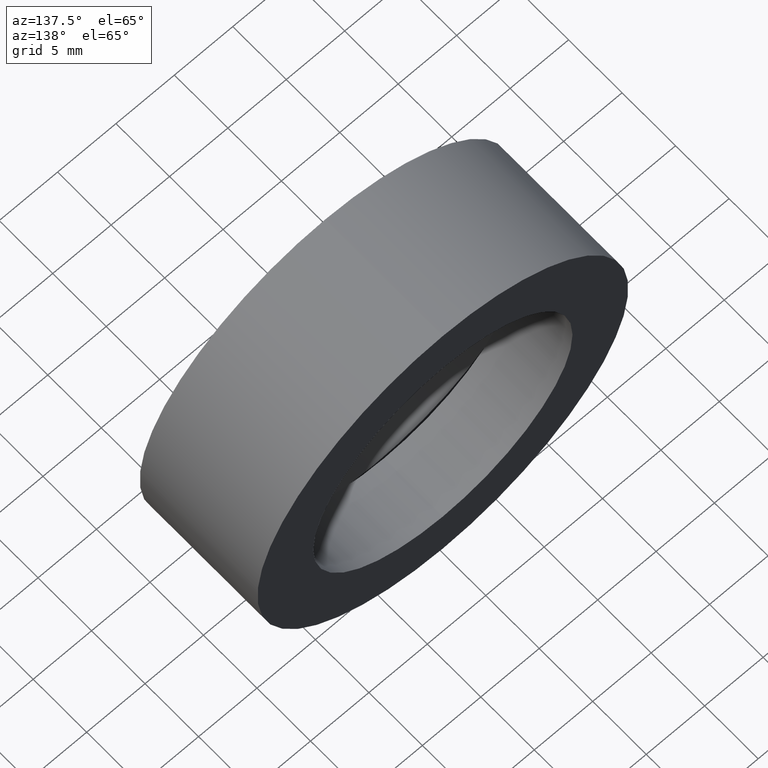
[diagram: clean part render]
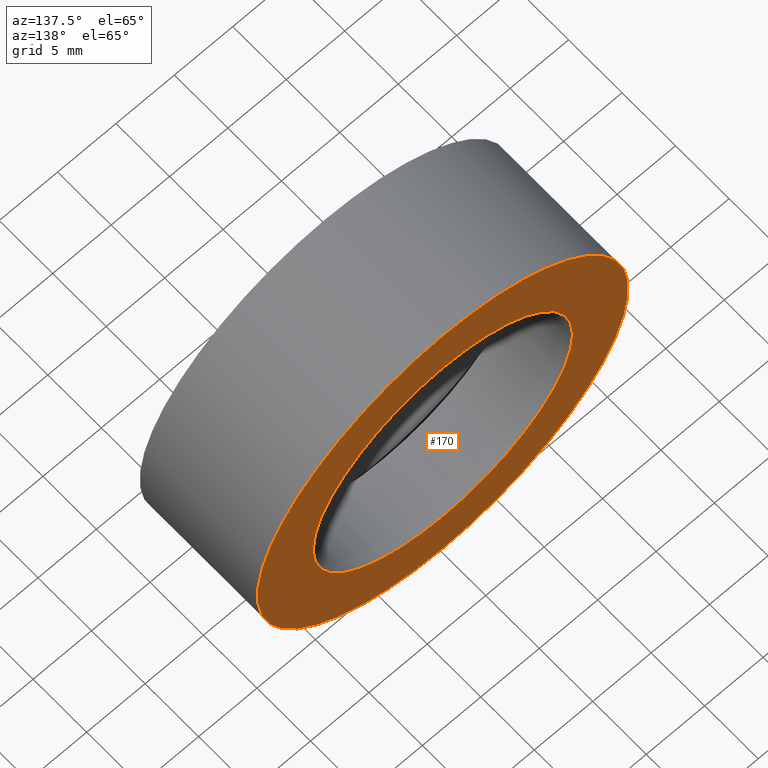
[diagram: same view with one face highlighted and labeled with its STEP entity id]
A machine part, auxiliary view. The second image highlights one B-rep face of the part: STEP entity #170.
In plain terms, the highlighted planar face has unit normal (0, -1, 0).
Its self-contained STEP definition (entity closure, byte-faithful):
#5 = AXIS2_PLACEMENT_3D ( 'NONE', #375, #378, #130 ) ;
#13 = CIRCLE ( 'NONE', #164, 11.10000000000000700 ) ;
#14 = EDGE_LOOP ( 'NONE', ( #208, #166 ) ) ;
#19 = CARTESIAN_POINT ( 'NONE',  ( 1.359357947053563100E-015, 10.99999999999999600, -11.10000000000000700 ) ) ;
#23 = AXIS2_PLACEMENT_3D ( 'NONE', #415, #266, #157 ) ;
#115 = CARTESIAN_POINT ( 'NONE',  ( 0.0000000000000000000, 10.99999999999999600, 0.0000000000000000000 ) ) ;
#116 = AXIS2_PLACEMENT_3D ( 'NONE', #131, #182, #180 ) ;
#125 = ORIENTED_EDGE ( 'NONE', *, *, #281, .F. ) ;
#130 = DIRECTION ( 'NONE',  ( 0.0000000000000000000, 0.0000000000000000000, 1.000000000000000000 ) ) ;
#131 = CARTESIAN_POINT ( 'NONE',  ( 11.10000000000000700, 11.00000000000000000, 0.0000000000000000000 ) ) ;
#138 = CIRCLE ( 'NONE', #159, 15.87500000000000400 ) ;
#143 = CARTESIAN_POINT ( 'NONE',  ( 0.0000000000000000000, 10.99999999999999600, 15.87500000000000400 ) ) ;
#152 = EDGE_CURVE ( 'NONE', #228, #317, #387, .T. ) ;
#157 = DIRECTION ( 'NONE',  ( 0.0000000000000000000, 0.0000000000000000000, 1.000000000000000000 ) ) ;
#159 = AXIS2_PLACEMENT_3D ( 'NONE', #115, #203, #247 ) ;
#164 = AXIS2_PLACEMENT_3D ( 'NONE', #365, #363, #408 ) ;
#166 = ORIENTED_EDGE ( 'NONE', *, *, #173, .T. ) ;
#170 = ADVANCED_FACE ( 'NONE', ( #242, #217 ), #222, .F. ) ;
#173 = EDGE_CURVE ( 'NONE', #210, #338, #138, .T. ) ;
#180 = DIRECTION ( 'NONE',  ( 0.0000000000000000000, -0.0000000000000000000, -1.000000000000000000 ) ) ;
#182 = DIRECTION ( 'NONE',  ( 0.0000000000000000000, -1.000000000000000000, 0.0000000000000000000 ) ) ;
#203 = DIRECTION ( 'NONE',  ( -0.0000000000000000000, 1.000000000000000000, -0.0000000000000000000 ) ) ;
#208 = ORIENTED_EDGE ( 'NONE', *, *, #307, .T. ) ;
#210 = VERTEX_POINT ( 'NONE', #308 ) ;
#217 = FACE_OUTER_BOUND ( 'NONE', #14, .T. ) ;
#222 = PLANE ( 'NONE',  #116 ) ;
#226 = EDGE_LOOP ( 'NONE', ( #125, #286 ) ) ;
#228 = VERTEX_POINT ( 'NONE', #19 ) ;
#242 = FACE_BOUND ( 'NONE', #226, .T. ) ;
#247 = DIRECTION ( 'NONE',  ( 0.0000000000000000000, 0.0000000000000000000, 1.000000000000000000 ) ) ;
#266 = DIRECTION ( 'NONE',  ( -0.0000000000000000000, 1.000000000000000000, -0.0000000000000000000 ) ) ;
#273 = CIRCLE ( 'NONE', #23, 15.87500000000000400 ) ;
#281 = EDGE_CURVE ( 'NONE', #317, #228, #13, .T. ) ;
#286 = ORIENTED_EDGE ( 'NONE', *, *, #152, .F. ) ;
#307 = EDGE_CURVE ( 'NONE', #338, #210, #273, .T. ) ;
#308 = CARTESIAN_POINT ( 'NONE',  ( 1.944126793646423600E-015, 10.99999999999999600, -15.87500000000000400 ) ) ;
#317 = VERTEX_POINT ( 'NONE', #362 ) ;
#338 = VERTEX_POINT ( 'NONE', #143 ) ;
#362 = CARTESIAN_POINT ( 'NONE',  ( 0.0000000000000000000, 10.99999999999999600, 11.10000000000000700 ) ) ;
#363 = DIRECTION ( 'NONE',  ( -0.0000000000000000000, 1.000000000000000000, -0.0000000000000000000 ) ) ;
#365 = CARTESIAN_POINT ( 'NONE',  ( 0.0000000000000000000, 10.99999999999999600, 0.0000000000000000000 ) ) ;
#375 = CARTESIAN_POINT ( 'NONE',  ( 0.0000000000000000000, 10.99999999999999600, 0.0000000000000000000 ) ) ;
#378 = DIRECTION ( 'NONE',  ( -0.0000000000000000000, 1.000000000000000000, -0.0000000000000000000 ) ) ;
#387 = CIRCLE ( 'NONE', #5, 11.10000000000000700 ) ;
#408 = DIRECTION ( 'NONE',  ( 0.0000000000000000000, 0.0000000000000000000, 1.000000000000000000 ) ) ;
#415 = CARTESIAN_POINT ( 'NONE',  ( 0.0000000000000000000, 10.99999999999999600, 0.0000000000000000000 ) ) ;